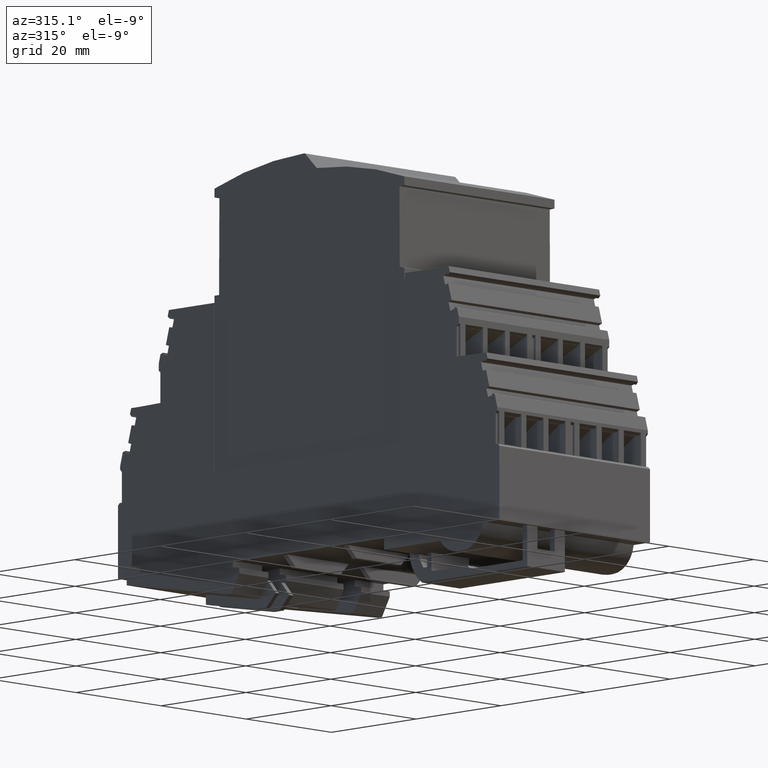
[diagram: clean part render]
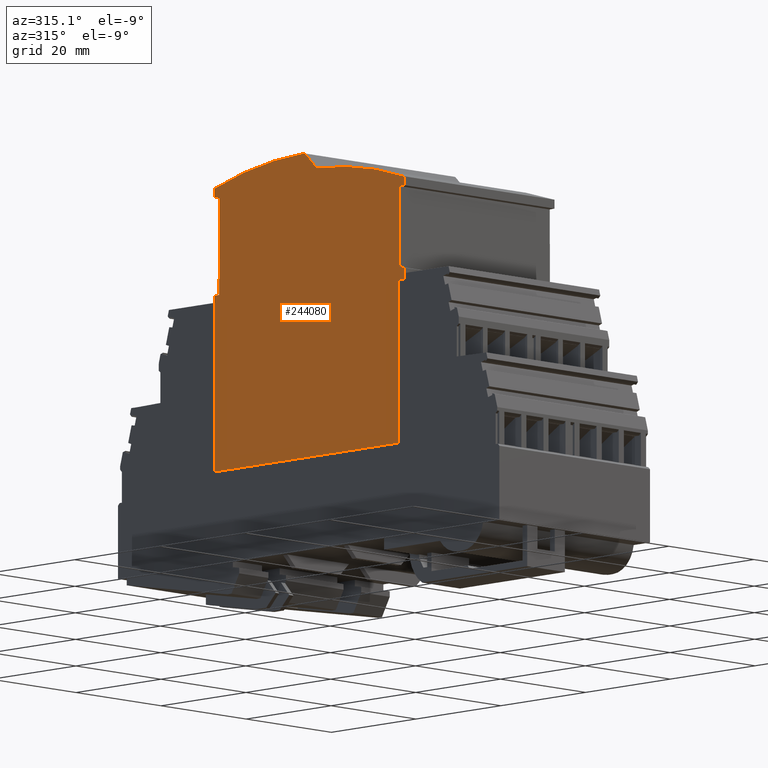
[diagram: same view with one face highlighted and labeled with its STEP entity id]
A machine part, auxiliary view. The second image highlights one B-rep face of the part: STEP entity #244080.
In plain terms, the highlighted planar face has unit normal (-1, 0, -0).
Its self-contained STEP definition (entity closure, byte-faithful):
#82640=CARTESIAN_POINT('',(109.314796403837,200.716341322117,
51.9421431980011));
#82650=VERTEX_POINT('',#82640);
#82680=CARTESIAN_POINT('',(109.327648748869,197.034430640545,
51.9421431980011));
#82690=DIRECTION('',(-0.00349065141522388,0.999993907657791,
-4.20937171684986E-18));
#82700=VECTOR('',#82690,1.);
#82710=LINE('',#82680,#82700);
#82720=CARTESIAN_POINT('',(109.308075362794,202.641769930324,
51.9421431980011));
#82730=VERTEX_POINT('',#82720);
#82740=EDGE_CURVE('',#82650,#82730,#82710,.T.);
#121880=CARTESIAN_POINT('',(154.111032815492,201.872716413177,
51.9421431980011));
#121890=VERTEX_POINT('',#121880);
#182050=CARTESIAN_POINT('',(110.614788483792,200.720879168957,
51.9421431980011));
#182060=VERTEX_POINT('',#182050);
#182090=CARTESIAN_POINT('',(132.276450575062,200.796492941057,
51.9421431980011));
#182100=DIRECTION('',(0.999993907657791,0.00349065141522364,
1.06338673324829E-15));
#182110=VECTOR('',#182100,1.);
#182120=LINE('',#182090,#182110);
#182130=EDGE_CURVE('',#82650,#182060,#182120,.T.);
#196890=CARTESIAN_POINT('',(154.210516380826,173.37289004493,
51.9421431980011));
#196900=VERTEX_POINT('',#196890);
#196950=CARTESIAN_POINT('',(154.22924825059,168.00662644118,
51.9421431980011));
#196960=DIRECTION('',(-0.00349065141522388,0.999993907657791,
-4.20937171684986E-18));
#196970=VECTOR('',#196960,1.);
#196980=LINE('',#196950,#196970);
#196990=EDGE_CURVE('',#196900,#121890,#196980,.T.);
#240520=CARTESIAN_POINT('',(110.710781397711,173.221046708368,
51.9421431980011));
#240530=VERTEX_POINT('',#240520);
#240560=CARTESIAN_POINT('',(110.730043302861,167.702939768056,
51.9421431980011));
#240570=DIRECTION('',(-0.00349065141522388,0.999993907657791,
-4.20937171684986E-18));
#240580=VECTOR('',#240570,1.);
#240590=LINE('',#240560,#240580);
#240600=EDGE_CURVE('',#240530,#182060,#240590,.T.);
#240750=CARTESIAN_POINT('',(132.468436402899,173.29699556031,
51.9421431980011));
#240760=DIRECTION('',(0.999993907657791,0.00349065141522364,
1.06338673324829E-15));
#240770=VECTOR('',#240760,1.);
#240780=LINE('',#240750,#240770);
#240790=EDGE_CURVE('',#240530,#196900,#240780,.T.);
#242910=CARTESIAN_POINT('',(152.945493648401,197.170624002411,
51.9421431980011));
#242920=DIRECTION('',(1.06340525669334E-15,-4.97379690839633E-19,-1.));
#242930=DIRECTION('',(-0.999993907657791,-0.00349065141522388,
-1.06339704188548E-15));
#242940=AXIS2_PLACEMENT_3D('',#242910,#242920,#242930);
#242950=PLANE('',#242940);
#242960=CARTESIAN_POINT('',(110.322999788296,136.363194587623,
51.9421431980011));
#242970=DIRECTION('',(-0.00103442824333471,-0.999999464978962,
-1.46999874489155E-18));
#242980=VECTOR('',#242970,1.);
#242990=LINE('',#242960,#242980);
#243000=CARTESIAN_POINT('',(110.405929453554,216.532719562764,
51.9421431980011));
#243010=VERTEX_POINT('',#243000);
#243020=CARTESIAN_POINT('',(110.391859409776,202.930967734838,
51.9421431980011));
#243030=VERTEX_POINT('',#243020);
#243040=EDGE_CURVE('',#243010,#243030,#242990,.T.);
#243050=ORIENTED_EDGE('',*,*,#243040,.F.);
#243060=CARTESIAN_POINT('',(201.36407670469,227.206067176233,
51.9421431980012));
#243070=DIRECTION('',(0.966193039228597,0.257819725673207,
1.23549333971797E-15));
#243080=VECTOR('',#243070,1.);
#243090=LINE('',#243060,#243080);
#243100=EDGE_CURVE('',#82730,#243030,#243090,.T.);
#243110=ORIENTED_EDGE('',*,*,#243100,.T.);
#243120=ORIENTED_EDGE('',*,*,#82740,.T.);
#243130=ORIENTED_EDGE('',*,*,#182130,.F.);
#243140=ORIENTED_EDGE('',*,*,#240600,.T.);
#243150=ORIENTED_EDGE('',*,*,#240790,.F.);
#243160=ORIENTED_EDGE('',*,*,#196990,.F.);
#243170=CARTESIAN_POINT('',(154.339168785683,136.51684062629,
51.9421431980012));
#243180=DIRECTION('',(0.00349065141522388,-0.999993907657791,
4.20935372486546E-18));
#243190=VECTOR('',#243180,1.);
#243200=LINE('',#243170,#243190);
#243210=CARTESIAN_POINT('',(154.106806148815,203.083562305198,
51.9421431980011));
#243220=VERTEX_POINT('',#243210);
#243230=EDGE_CURVE('',#243220,#121890,#243200,.T.);
#243240=ORIENTED_EDGE('',*,*,#243230,.T.);
#243250=CARTESIAN_POINT('',(201.447703634287,203.248813882772,
51.9421431980012));
#243260=DIRECTION('',(-0.999993907657791,-0.00349065141522388,
-1.30832640171496E-15));
#243270=VECTOR('',#243260,1.);
#243280=LINE('',#243250,#243270);
#243290=CARTESIAN_POINT('',(153.021694919504,203.079774537073,
51.9421431980011));
#243300=VERTEX_POINT('',#243290);
#243310=EDGE_CURVE('',#243220,#243300,#243280,.T.);
#243320=ORIENTED_EDGE('',*,*,#243310,.F.);
#243330=CARTESIAN_POINT('',(153.55527981472,136.514104326474,
51.9421431980012));
#243340=DIRECTION('',(-0.00801565959788882,0.999967874084569,
-9.88862000230953E-18));
#243350=VECTOR('',#243340,1.);
#243360=LINE('',#243330,#243350);
#243370=CARTESIAN_POINT('',(152.889027881183,219.630224896167,
51.9421431980011));
#243380=VERTEX_POINT('',#243370);
#243390=EDGE_CURVE('',#243300,#243380,#243360,.T.);
#243400=ORIENTED_EDGE('',*,*,#243390,.F.);
#243410=CARTESIAN_POINT('',(201.38620896084,220.865668585917,
51.9421431980012));
#243420=DIRECTION('',(-0.999675681584727,-0.0254662845368576,
-1.06304770837296E-15));
#243430=VECTOR('',#243420,1.);
#243440=LINE('',#243410,#243430);
#243450=CARTESIAN_POINT('',(154.048778582218,219.659769019215,
51.9421431980011));
#243460=VERTEX_POINT('',#243450);
#243470=EDGE_CURVE('',#243460,#243380,#243440,.T.);
#243480=ORIENTED_EDGE('',*,*,#243470,.T.);
#243490=CARTESIAN_POINT('',(154.339003333043,136.516840048749,
51.9421431980011));
#243500=DIRECTION('',(-0.00349065141522388,0.999993907657791,
-4.20935372486546E-18));
#243510=VECTOR('',#243500,1.);
#243520=LINE('',#243490,#243510);
#243530=CARTESIAN_POINT('',(154.043574922055,221.150501791474,
51.9421431980011));
#243540=VERTEX_POINT('',#243530);
#243550=EDGE_CURVE('',#243460,#243540,#243520,.T.);
#243560=ORIENTED_EDGE('',*,*,#243550,.F.);
#243570=CARTESIAN_POINT('',(131.881831134619,152.856306486894,
51.9421431980011));
#243580=DIRECTION('',(1.06340525669334E-15,-4.97379690839633E-19,-1.));
#243590=DIRECTION('',(-0.999993907657791,-0.00349065141522388,
-1.06339704188548E-15));
#243600=AXIS2_PLACEMENT_3D('',#243570,#243580,#243590);
#243610=CIRCLE('',#243600,71.8);
#243620=CARTESIAN_POINT('',(132.92163920766,224.648776838396,
51.9421431980011));
#243630=VERTEX_POINT('',#243620);
#243640=EDGE_CURVE('',#243630,#243540,#243610,.T.);
#243650=ORIENTED_EDGE('',*,*,#243640,.T.);
#243660=CARTESIAN_POINT('',(132.914398204366,224.148829273274,
51.9421431980011));
#243670=DIRECTION('',(1.06340525669334E-15,-4.97379690839633E-19,-1.));
#243680=DIRECTION('',(-0.999993907657791,-0.00349065141522388,
-1.06339704188548E-15));
#243690=AXIS2_PLACEMENT_3D('',#243660,#243670,#243680);
#243700=CIRCLE('',#243690,0.5);
#243710=CARTESIAN_POINT('',(132.559612836098,224.501146378256,
51.9421431980011));
#243720=VERTEX_POINT('',#243710);
#243730=EDGE_CURVE('',#243720,#243630,#243700,.T.);
#243740=ORIENTED_EDGE('',*,*,#243730,.T.);
#243750=CARTESIAN_POINT('',(201.132476330183,293.554417661281,
51.9421431980012));
#243760=DIRECTION('',(-0.704634209963596,-0.70957073653652,
-7.48958796847677E-16));
#243770=VECTOR('',#243760,1.);
#243780=LINE('',#243750,#243770);
#243790=CARTESIAN_POINT('',(129.905048023134,221.827984214278,
51.9421431980011));
#243800=VERTEX_POINT('',#243790);
#243810=EDGE_CURVE('',#243720,#243800,#243780,.T.);
#243820=ORIENTED_EDGE('',*,*,#243810,.F.);
#243830=CARTESIAN_POINT('',(131.881831134619,152.856306486894,
51.9421431980011));
#243840=DIRECTION('',(1.06340525669334E-15,-4.97379690839633E-19,-1.));
#243850=DIRECTION('',(-0.999993907657791,-0.00349065141522388,
-1.06339704188548E-15));
#243860=AXIS2_PLACEMENT_3D('',#243830,#243840,#243850);
#243870=CIRCLE('',#243860,69.);
#243880=CARTESIAN_POINT('',(109.254157732408,218.040571431763,
51.9421431980011));
#243890=VERTEX_POINT('',#243880);
#243900=EDGE_CURVE('',#243890,#243800,#243870,.T.);
#243910=ORIENTED_EDGE('',*,*,#243900,.T.);
#243920=CARTESIAN_POINT('',(109.539276269974,136.360458865347,
51.9421431980011));
#243930=DIRECTION('',(0.00349065141522388,-0.999993907657791,
4.20935372486546E-18));
#243940=VECTOR('',#243930,1.);
#243950=LINE('',#243920,#243940);
#243960=CARTESIAN_POINT('',(109.259347147093,216.553919671914,
51.9421431980011));
#243970=VERTEX_POINT('',#243960);
#243980=EDGE_CURVE('',#243890,#243970,#243950,.T.);
#243990=ORIENTED_EDGE('',*,*,#243980,.F.);
#244000=CARTESIAN_POINT('',(201.407207266275,214.850121626654,
51.9421431980012));
#244010=DIRECTION('',(-0.999829106954707,0.0184866677947818,
-1.06323272302375E-15));
#244020=VECTOR('',#244010,1.);
#244030=LINE('',#244000,#244020);
#244040=EDGE_CURVE('',#243010,#243970,#244030,.T.);
#244050=ORIENTED_EDGE('',*,*,#244040,.T.);
#244060=EDGE_LOOP('',(#244050,#243990,#243910,#243820,#243740,#243650,
#243560,#243480,#243400,#243320,#243240,#243160,#243150,#243140,#243130,
#243120,#243110,#243050));
#244070=FACE_OUTER_BOUND('',#244060,.T.);
#244080=ADVANCED_FACE('',(#244070),#242950,.T.);